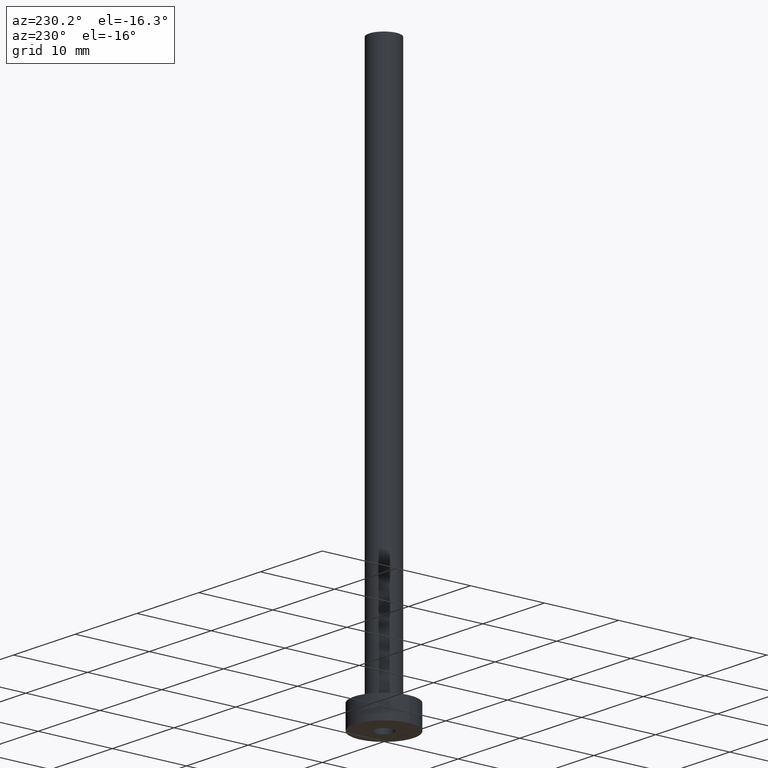
[diagram: clean part render]
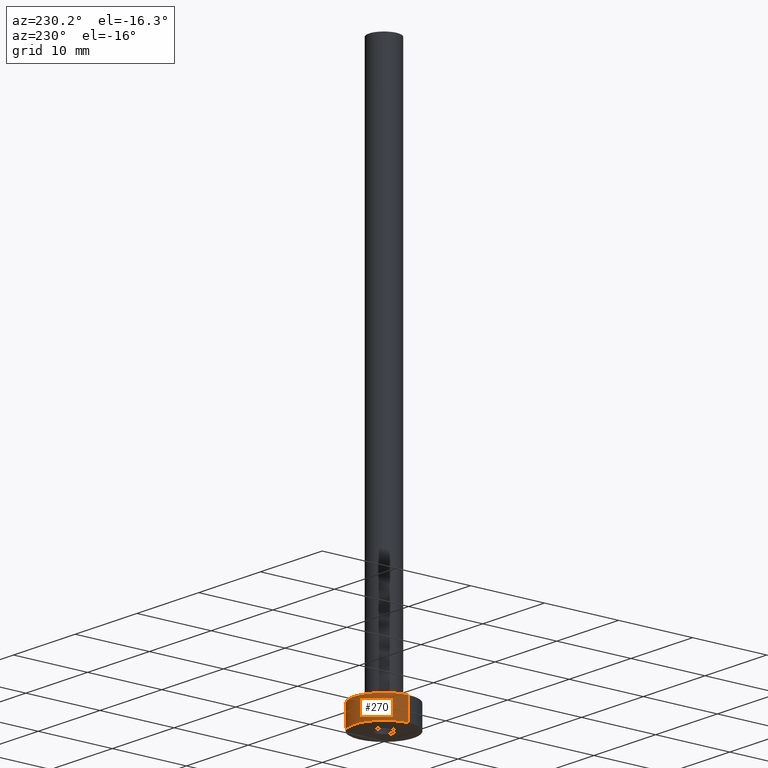
[diagram: same view with one face highlighted and labeled with its STEP entity id]
A machine part, auxiliary view. The second image highlights one B-rep face of the part: STEP entity #270.
In plain terms, the highlighted cylindrical surface (partial cylindrical patch) has radius 4 mm, axis along (-0, -0, -1).
Its self-contained STEP definition (entity closure, byte-faithful):
#6 = CARTESIAN_POINT ( 'NONE',  ( 4.000000000000000000, 4.898587196589412829E-16, 0.000000000000000000 ) ) ;
#8 = VERTEX_POINT ( 'NONE', #453 ) ;
#12 = ORIENTED_EDGE ( 'NONE', *, *, #51, .F. ) ;
#36 = CARTESIAN_POINT ( 'NONE',  ( 4.000000000000000000, 4.898587196589412829E-16, 3.000000000000000000 ) ) ;
#43 = VECTOR ( 'NONE', #144, 1000.000000000000000 ) ;
#51 = EDGE_CURVE ( 'NONE', #326, #8, #265, .T. ) ;
#70 = AXIS2_PLACEMENT_3D ( 'NONE', #110, #215, #461 ) ;
#74 = CARTESIAN_POINT ( 'NONE',  ( -4.000000000000000000, 0.000000000000000000, 0.000000000000000000 ) ) ;
#76 = ORIENTED_EDGE ( 'NONE', *, *, #278, .T. ) ;
#91 = ORIENTED_EDGE ( 'NONE', *, *, #255, .T. ) ;
#96 = DIRECTION ( 'NONE',  ( 1.000000000000000000, 0.000000000000000000, 0.000000000000000000 ) ) ;
#105 = CARTESIAN_POINT ( 'NONE',  ( 4.000000000000000000, 4.898587196589412829E-16, 3.000000000000000000 ) ) ;
#110 = CARTESIAN_POINT ( 'NONE',  ( 0.000000000000000000, 0.000000000000000000, 3.000000000000000000 ) ) ;
#144 = DIRECTION ( 'NONE',  ( -0.000000000000000000, -0.000000000000000000, -1.000000000000000000 ) ) ;
#175 = LINE ( 'NONE', #36, #43 ) ;
#215 = DIRECTION ( 'NONE',  ( -0.000000000000000000, -0.000000000000000000, -1.000000000000000000 ) ) ;
#227 = ORIENTED_EDGE ( 'NONE', *, *, #392, .F. ) ;
#228 = EDGE_LOOP ( 'NONE', ( #12, #76, #91, #227 ) ) ;
#231 = VERTEX_POINT ( 'NONE', #74 ) ;
#250 = AXIS2_PLACEMENT_3D ( 'NONE', #387, #312, #455 ) ;
#255 = EDGE_CURVE ( 'NONE', #424, #231, #282, .T. ) ;
#265 = CIRCLE ( 'NONE', #338, 4.000000000000000000 ) ;
#270 = ADVANCED_FACE ( 'NONE', ( #350 ), #353, .T. ) ;
#278 = EDGE_CURVE ( 'NONE', #326, #424, #175, .T. ) ;
#282 = CIRCLE ( 'NONE', #250, 4.000000000000000000 ) ;
#295 = CARTESIAN_POINT ( 'NONE',  ( -4.000000000000000000, 0.000000000000000000, 3.000000000000000000 ) ) ;
#311 = DIRECTION ( 'NONE',  ( 0.000000000000000000, 0.000000000000000000, 1.000000000000000000 ) ) ;
#312 = DIRECTION ( 'NONE',  ( 0.000000000000000000, 0.000000000000000000, 1.000000000000000000 ) ) ;
#326 = VERTEX_POINT ( 'NONE', #105 ) ;
#327 = LINE ( 'NONE', #295, #370 ) ;
#338 = AXIS2_PLACEMENT_3D ( 'NONE', #383, #311, #96 ) ;
#350 = FACE_OUTER_BOUND ( 'NONE', #228, .T. ) ;
#353 = CYLINDRICAL_SURFACE ( 'NONE', #70, 4.000000000000000000 ) ;
#370 = VECTOR ( 'NONE', #437, 1000.000000000000000 ) ;
#383 = CARTESIAN_POINT ( 'NONE',  ( 0.000000000000000000, 0.000000000000000000, 3.000000000000000000 ) ) ;
#387 = CARTESIAN_POINT ( 'NONE',  ( 0.000000000000000000, 0.000000000000000000, 0.000000000000000000 ) ) ;
#392 = EDGE_CURVE ( 'NONE', #8, #231, #327, .T. ) ;
#424 = VERTEX_POINT ( 'NONE', #6 ) ;
#437 = DIRECTION ( 'NONE',  ( -0.000000000000000000, -0.000000000000000000, -1.000000000000000000 ) ) ;
#453 = CARTESIAN_POINT ( 'NONE',  ( -4.000000000000000000, 0.000000000000000000, 3.000000000000000000 ) ) ;
#455 = DIRECTION ( 'NONE',  ( 1.000000000000000000, 0.000000000000000000, 0.000000000000000000 ) ) ;
#461 = DIRECTION ( 'NONE',  ( -1.000000000000000000, 0.000000000000000000, 0.000000000000000000 ) ) ;